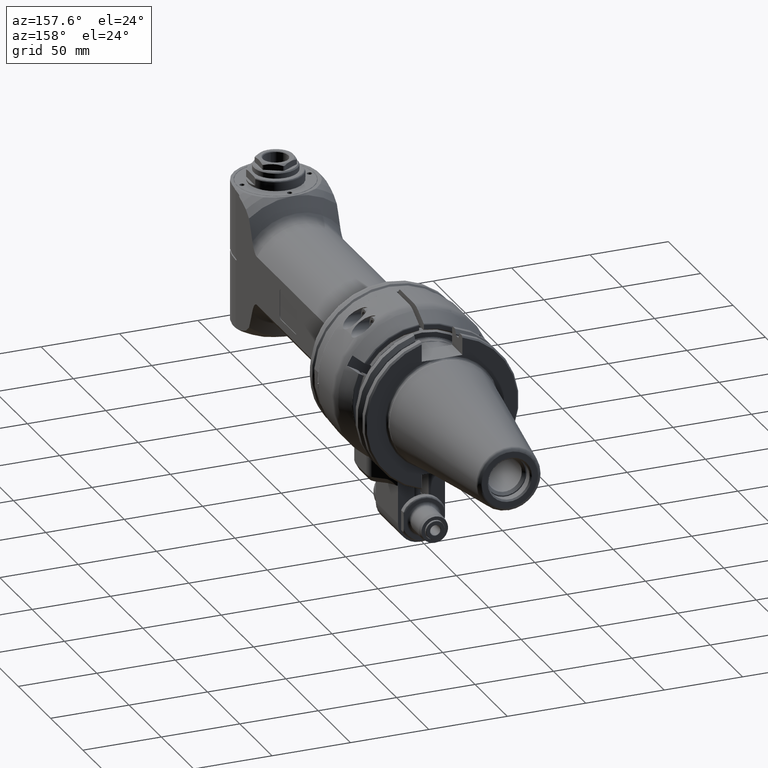
[diagram: clean part render]
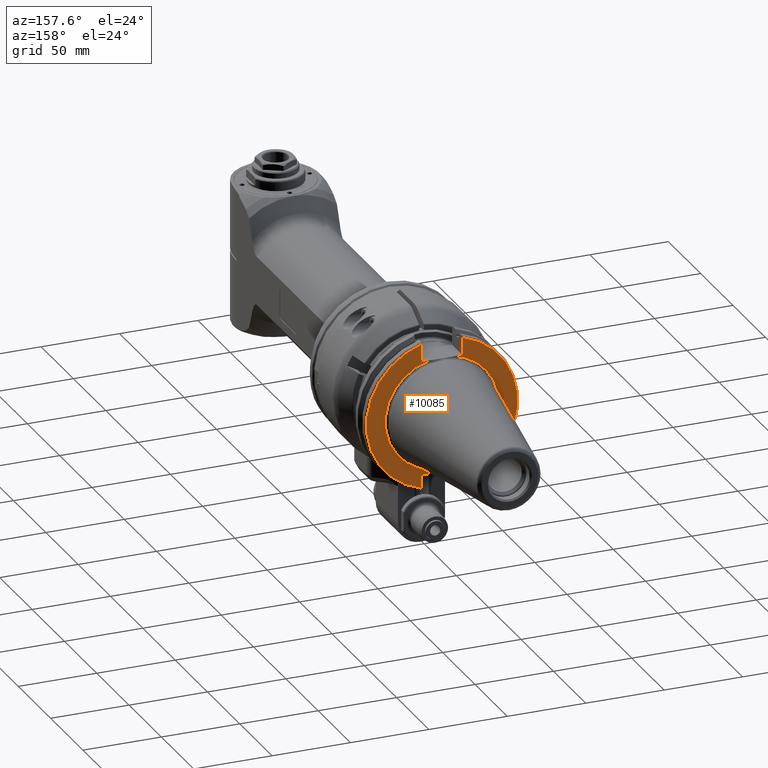
[diagram: same view with one face highlighted and labeled with its STEP entity id]
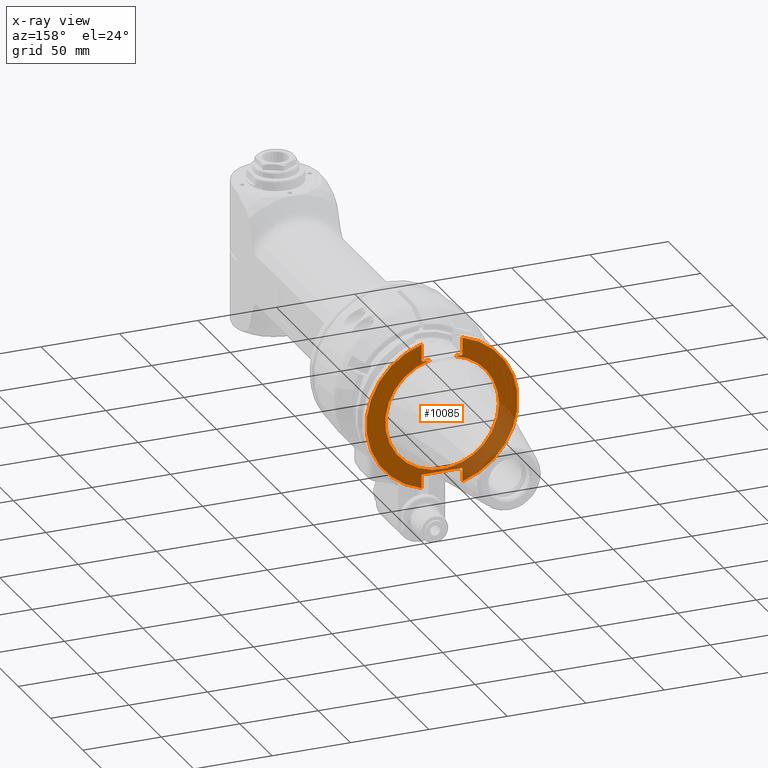
[diagram: x-ray of the same camera — body ghosted, the highlighted face saturated]
A machine part, auxiliary view. The second image highlights one B-rep face of the part: STEP entity #10085.
The next image is the same camera in x-ray: the body ghosted, the highlighted face saturated — about 24% of this face is hidden behind the body in this view.
In plain terms, the highlighted planar face has unit normal (0, -1, 0).
Its self-contained STEP definition (entity closure, byte-faithful):
#1278=CIRCLE('',#11341,48.225);
#1280=CIRCLE('',#11344,48.225);
#1281=CIRCLE('',#11345,36.225);
#1282=CIRCLE('',#11346,36.225);
#1847=FACE_OUTER_BOUND('',#2522,.T.);
#2522=EDGE_LOOP('',(#8913,#8914,#8915,#8916,#8917,#8918,#8919,#8920,#8921,
#8922,#8923));
#3176=LINE('',#20162,#3835);
#3183=LINE('',#20195,#3842);
#3184=LINE('',#20197,#3843);
#3185=LINE('',#20199,#3844);
#3186=LINE('',#20201,#3845);
#3187=LINE('',#20205,#3846);
#3188=LINE('',#20207,#3847);
#3835=VECTOR('',#14144,11.14660497539);
#3842=VECTOR('',#14171,4.846164962211);
#3843=VECTOR('',#14172,8.733604975397);
#3844=VECTOR('',#14173,25.908);
#3845=VECTOR('',#14174,8.733604975394);
#3846=VECTOR('',#14177,11.14660497539);
#3847=VECTOR('',#14178,4.846164962211);
#4780=VERTEX_POINT('',#20159);
#4781=VERTEX_POINT('',#20161);
#4790=VERTEX_POINT('',#20190);
#4791=VERTEX_POINT('',#20194);
#4792=VERTEX_POINT('',#20196);
#4793=VERTEX_POINT('',#20198);
#4794=VERTEX_POINT('',#20200);
#4795=VERTEX_POINT('',#20202);
#4796=VERTEX_POINT('',#20204);
#4797=VERTEX_POINT('',#20206);
#4798=VERTEX_POINT('',#20208);
#6180=EDGE_CURVE('',#4780,#4781,#3176,.T.);
#6193=EDGE_CURVE('',#4780,#4790,#1278,.T.);
#6195=EDGE_CURVE('',#4791,#4781,#3183,.T.);
#6196=EDGE_CURVE('',#4792,#4790,#3184,.T.);
#6197=EDGE_CURVE('',#4792,#4793,#3185,.T.);
#6198=EDGE_CURVE('',#4794,#4793,#3186,.T.);
#6199=EDGE_CURVE('',#4794,#4795,#1280,.T.);
#6200=EDGE_CURVE('',#4796,#4795,#3187,.T.);
#6201=EDGE_CURVE('',#4796,#4797,#3188,.T.);
#6202=EDGE_CURVE('',#4797,#4798,#1281,.T.);
#6203=EDGE_CURVE('',#4798,#4791,#1282,.T.);
#8913=ORIENTED_EDGE('',*,*,#6195,.T.);
#8914=ORIENTED_EDGE('',*,*,#6180,.F.);
#8915=ORIENTED_EDGE('',*,*,#6193,.T.);
#8916=ORIENTED_EDGE('',*,*,#6196,.F.);
#8917=ORIENTED_EDGE('',*,*,#6197,.T.);
#8918=ORIENTED_EDGE('',*,*,#6198,.F.);
#8919=ORIENTED_EDGE('',*,*,#6199,.T.);
#8920=ORIENTED_EDGE('',*,*,#6200,.F.);
#8921=ORIENTED_EDGE('',*,*,#6201,.T.);
#8922=ORIENTED_EDGE('',*,*,#6202,.T.);
#8923=ORIENTED_EDGE('',*,*,#6203,.T.);
#9526=PLANE('',#11343);
#10085=ADVANCED_FACE('',(#1847),#9526,.F.);
#11341=AXIS2_PLACEMENT_3D('',#20191,#14165,#14166);
#11343=AXIS2_PLACEMENT_3D('',#20193,#14169,#14170);
#11344=AXIS2_PLACEMENT_3D('',#20203,#14175,#14176);
#11345=AXIS2_PLACEMENT_3D('',#20209,#14179,#14180);
#11346=AXIS2_PLACEMENT_3D('',#20210,#14181,#14182);
#14144=DIRECTION('',(0.,0.,-1.));
#14165=DIRECTION('center_axis',(0.,1.,0.));
#14166=DIRECTION('ref_axis',(0.268615863141505,0.,0.963247381553017));
#14169=DIRECTION('center_axis',(0.,-1.,0.));
#14170=DIRECTION('ref_axis',(1.,0.,0.));
#14171=DIRECTION('',(1.,0.,0.));
#14172=DIRECTION('',(-7.973017820322E-14,0.,-1.));
#14173=DIRECTION('',(-1.,0.,0.));
#14174=DIRECTION('',(0.,0.,1.));
#14175=DIRECTION('center_axis',(0.,1.,0.));
#14176=DIRECTION('ref_axis',(-0.268615863141505,0.,-0.963247381553017));
#14177=DIRECTION('',(0.,0.,1.));
#14178=DIRECTION('',(1.,0.,0.));
#14179=DIRECTION('center_axis',(0.,-1.,0.));
#14180=DIRECTION('ref_axis',(1.,0.,0.));
#14181=DIRECTION('center_axis',(0.,-1.,0.));
#14182=DIRECTION('ref_axis',(1.,0.,0.));
#20159=CARTESIAN_POINT('',(12.954,71.325,46.45260497539));
#20161=CARTESIAN_POINT('',(12.954,71.325,35.306));
#20162=CARTESIAN_POINT('',(12.954,71.325,46.45260497539));
#20190=CARTESIAN_POINT('',(12.954,71.325,-46.4526049754));
#20191=CARTESIAN_POINT('Origin',(0.,71.325,0.));
#20193=CARTESIAN_POINT('Origin',(42.625,71.325,0.));
#20194=CARTESIAN_POINT('',(8.107835037789,71.325,35.306));
#20195=CARTESIAN_POINT('',(8.107835037789,71.325,35.306));
#20196=CARTESIAN_POINT('',(12.954,71.325,-37.719));
#20197=CARTESIAN_POINT('',(12.954,71.325,-37.719));
#20198=CARTESIAN_POINT('',(-12.954,71.325,-37.719));
#20199=CARTESIAN_POINT('',(12.954,71.325,-37.719));
#20200=CARTESIAN_POINT('',(-12.954,71.325,-46.45260497539));
#20201=CARTESIAN_POINT('',(-12.954,71.325,-46.45260497539));
#20202=CARTESIAN_POINT('',(-12.954,71.325,46.45260497539));
#20203=CARTESIAN_POINT('Origin',(0.,71.325,0.));
#20204=CARTESIAN_POINT('',(-12.954,71.325,35.306));
#20205=CARTESIAN_POINT('',(-12.954,71.325,35.306));
#20206=CARTESIAN_POINT('',(-8.107835037789,71.325,35.306));
#20207=CARTESIAN_POINT('',(-12.954,71.325,35.306));
#20208=CARTESIAN_POINT('',(-36.225,71.325,-4.43628302991129E-15));
#20209=CARTESIAN_POINT('Origin',(0.,71.325,0.));
#20210=CARTESIAN_POINT('Origin',(0.,71.325,0.));